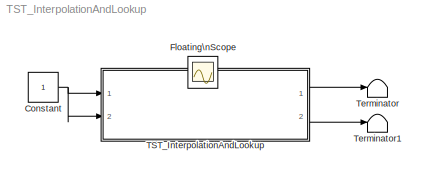
MODEL TST_InterpolationAndLookup
KIND model
BLOCK [Constant] Constant
  SID = 305
BLOCK [Scope] Floating\nScope
  Floating = off
  IOType = viewer
  NumInputPorts = 1
  Ports = []
  SID = 73
  ScopeSpecificationString = C++SS(StrPVP('Location','[1463, 653, 1787, 926]'),StrPVP('Open','off'),MxPVP('AxesTitles',54,'struct(''axes1'',''%<SignalLabel>'')'),MxPVP('ScopeGraphics',57,'struct(''FigureColor'',''[0.5 0.5 0.5]'',''AxesColor'',''[0 0 0]'',''AxesTickColor'',''[1 1 1]'',''LineColors'',''[1 1 0;1 0 1;0 1 1;1 0 0;0 1 0;0 0 1]'',''LineStyles'',''-|-|-|-|-|-'',''LineWidths'',''[0.5 0.5 0.5 0.5 0.5 0.5]'',''MarkerSty...<+178ch>
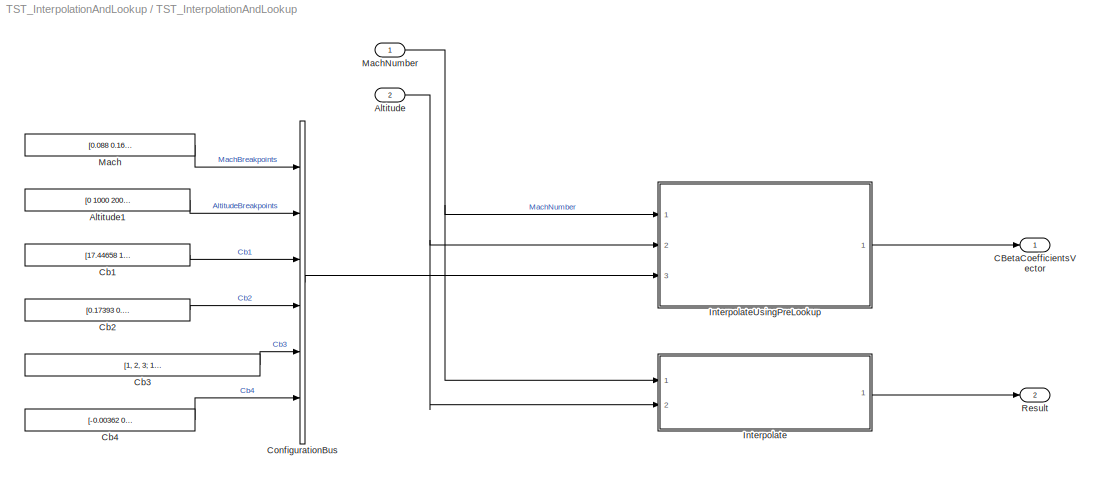
BLOCK [SubSystem] TST_InterpolationAndLookup
  Ports = [2, 2]
  RequestExecContextInheritance = off
  SID = 299
  TreatAsAtomicUnit = on
BLOCK [Inport] TST_InterpolationAndLookup/Altitude
  IconDisplay = Port number
  OutDataTypeStr = double
  Port = 2
  PortDimensions = 1
  SID = 329
BLOCK [Constant] TST_InterpolationAndLookup/Altitude1
  SID = 9
  Value = [0 1000 2000 5000]
BLOCK [Outport] TST_InterpolationAndLookup/CBetaCoefficientsVector
  IconDisplay = Port number
  OutDataTypeStr = double
  PortDimensions = 4
  SID = 304
BLOCK [Constant] TST_InterpolationAndLookup/Cb1
  SID = 19
  Value = [17.44658 17.35237 17.31781]
BLOCK [Constant] TST_InterpolationAndLookup/Cb2
  SID = 28
  Value = [0.17393 0.13673 0.14074]
BLOCK [Constant] TST_InterpolationAndLookup/Cb3
  SID = 29
  Value = [1, 2, 3; 10, 12, 14; 150, 300, 400; 1000, 2000, 3000]'
BLOCK [Constant] TST_InterpolationAndLookup/Cb4
  SID = 30
  Value = [-0.00362 0.05052 0.01760]
BLOCK [BusCreator] TST_InterpolationAndLookup/ConfigurationBus
  DisplayOption = bar
  InheritFromInputs = on
  Inputs = 6
  Ports = [6, 1]
  SID = 17
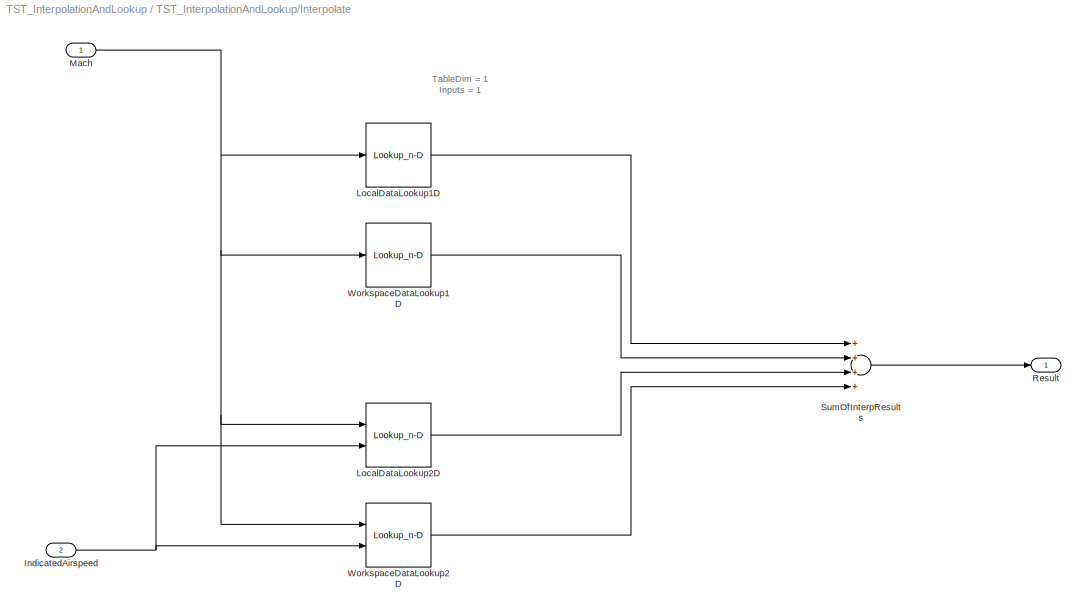
BLOCK [SubSystem] TST_InterpolationAndLookup/Interpolate
  Ports = [2, 1]
  RequestExecContextInheritance = off
  SID = 314
  TreatAsAtomicUnit = on
BLOCK [Inport] TST_InterpolationAndLookup/Interpolate/IndicatedAirspeed
  IconDisplay = Port number
  OutDataTypeStr = double
  Port = 2
  PortDimensions = 1
  SID = 330
BLOCK [Lookup_n-D] TST_InterpolationAndLookup/Interpolate/LocalDataLookup1D
  BreakpointsForDimension1 = [10 20 30]
  NumberOfTableDimensions = 1
  Ports = [1, 1]
  RndMeth = Simplest
  SID = 325
  Table = [1 2 3]
BLOCK [Lookup_n-D] TST_InterpolationAndLookup/Interpolate/LocalDataLookup2D
  BreakpointsForDimension1 = [1 2 3 4]
  BreakpointsForDimension2 = [10 20 30]
  Ports = [2, 1]
  RndMeth = Simplest
  SID = 309
  Table = [1, 2, 3; 10, 20, 30; 25, 26, 27; 100, 200, 300]
BLOCK [Inport] TST_InterpolationAndLookup/Interpolate/Mach
  IconDisplay = Port number
  SID = 324
BLOCK [Outport] TST_InterpolationAndLookup/Interpolate/Result
  IconDisplay = Port number
  SID = 335
BLOCK [Sum] TST_InterpolationAndLookup/Interpolate/SumOfInterpResults
  InputSameDT = off
  Inputs = ++++
  OutDataTypeStr = Inherit: Inherit via internal rule
  Ports = [4, 1]
  SID = 334
  SaturateOnIntegerOverflow = off
BLOCK [Lookup_n-D] TST_InterpolationAndLookup/Interpolate/WorkspaceDataLookup1D
  BreakpointsForDimension1 = TST_LookupData_BreakPointsX1D
  NumberOfTableDimensions = 1
  Ports = [1, 1]
  RndMeth = Simplest
  SID = 327
  Table = TST_LookupData_DataPoints1D
BLOCK [Lookup_n-D] TST_InterpolationAndLookup/Interpolate/WorkspaceDataLookup2D
  BreakpointsForDimension1 = TST_LookupData_BreakPointsY2D
  BreakpointsForDimension2 = TST_LookupData_BreakPointsX2D
  Ports = [2, 1]
  RndMeth = Simplest
  SID = 328
  Table = TST_LookupData_DataPoints2D
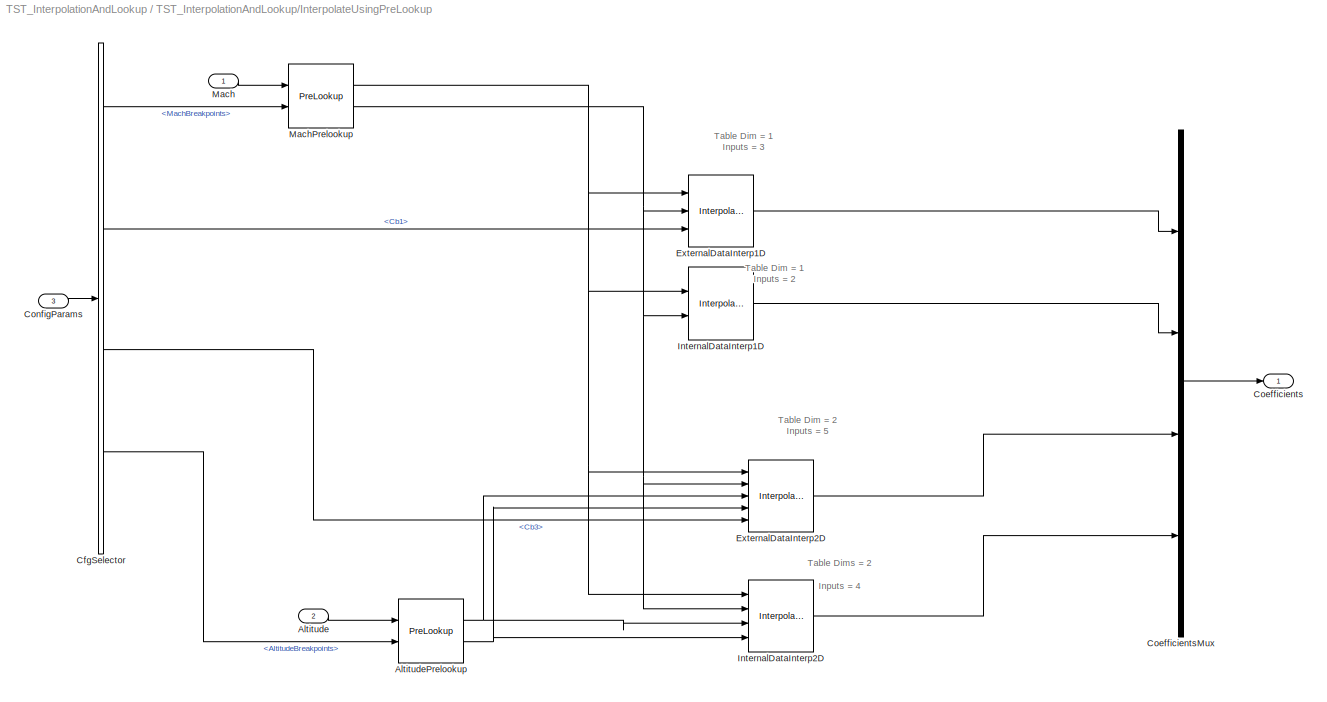
BLOCK [SubSystem] TST_InterpolationAndLookup/InterpolateUsingPreLookup
  Ports = [3, 1]
  RequestExecContextInheritance = off
  SID = 159
  TreatAsAtomicUnit = on
BLOCK [Inport] TST_InterpolationAndLookup/InterpolateUsingPreLookup/Altitude
  IconDisplay = Port number
  OutDataTypeStr = double
  Port = 2
  PortDimensions = 1
  SID = 331
BLOCK [PreLookup] TST_InterpolationAndLookup/InterpolateUsingPreLookup/AltitudePrelookup
  BreakpointsData = [10:10:110]
  BreakpointsDataSource = Input port
  ExtrapMethod = Linear
  InputPortMap = u0,p1
  Ports = [2, 2]
  SID = 332
BLOCK [BusSelector] TST_InterpolationAndLookup/InterpolateUsingPreLookup/CfgSelector
  OutputAsBus = off
  OutputSignals = MachBreakpoints,Cb1,Cb3,AltitudeBreakpoints
  Ports = [1, 4]
  SID = 18
BLOCK [Outport] TST_InterpolationAndLookup/InterpolateUsingPreLookup/Coefficients
  IconDisplay = Port number
  SID = 162
BLOCK [Mux] TST_InterpolationAndLookup/InterpolateUsingPreLookup/CoefficientsMux
  DisplayOption = bar
  Ports = [4, 1]
  SID = 46
BLOCK [Inport] TST_InterpolationAndLookup/InterpolateUsingPreLookup/ConfigParams
  IconDisplay = Port number
  Port = 3
  SID = 161
BLOCK [Interpolation_n-D] TST_InterpolationAndLookup/InterpolateUsingPreLookup/ExternalDataInterp1D
  ExtrapMethod = Clip
  InputPortMap = u0,u1,p2
  IntermediateResultsDataTypeStr = Inherit: Inherit via internal rule
  NumberOfTableDimensions = 1
  Ports = [3, 1]
  SID = 14
  TableSource = Input port
BLOCK [Interpolation_n-D] TST_InterpolationAndLookup/InterpolateUsingPreLookup/ExternalDataInterp2D
  ExtrapMethod = Clip
  InputPortMap = u0,u1,u2,u3,p2
  IntermediateResultsDataTypeStr = Inherit: Inherit via internal rule
  Ports = [5, 1]
  SID = 34
  TableSource = Input port
BLOCK [Interpolation_n-D] TST_InterpolationAndLookup/InterpolateUsingPreLookup/InternalDataInterp1D
  ExtrapMethod = Clip
  InputPortMap = u0,u1
  IntermediateResultsDataTypeStr = Inherit: Inherit via internal rule
  NumberOfTableDimensions = 1
  Ports = [2, 1]
  SID = 20
  Table = [0.17393 0.13673 0.14074]
BLOCK [Interpolation_n-D] TST_InterpolationAndLookup/InterpolateUsingPreLookup/InternalDataInterp2D
  ExtrapMethod = Clip
  InputPortMap = u0,u1,u2,u3
  IntermediateResultsDataTypeStr = Inherit: Inherit via internal rule
  Ports = [4, 1]
  SID = 333
  Table = [1, 2, 3; 10, 12, 14; 150, 300, 400; 1000, 2000, 3000]'
BLOCK [Inport] TST_InterpolationAndLookup/InterpolateUsingPreLookup/Mach
  IconDisplay = Port number
  SID = 160
BLOCK [PreLookup] TST_InterpolationAndLookup/InterpolateUsingPreLookup/MachPrelookup
  BreakpointsData = [10:10:110]
  BreakpointsDataSource = Input port
  ExtrapMethod = Linear
  InputPortMap = u0,p1
  Ports = [2, 2]
  SID = 15
BLOCK [Constant] TST_InterpolationAndLookup/Mach
  SID = 8
  Value = [0.088 0.166 0.241]
BLOCK [Inport] TST_InterpolationAndLookup/MachNumber
  IconDisplay = Port number
  OutDataTypeStr = double
  PortDimensions = 1
  SID = 303
BLOCK [Outport] TST_InterpolationAndLookup/Result
  IconDisplay = Port number
  OutDataTypeStr = double
  Port = 2
  PortDimensions = 1
  SID = 336
BLOCK [Terminator] Terminator
  SID = 306
BLOCK [Terminator] Terminator1
  SID = 337
ANNOTATION TST_InterpolationAndLookup/Interpolate: TableDim = 1\nInputs = 1
ANNOTATION TST_InterpolationAndLookup/InterpolateUsingPreLookup: Table Dim = 1\nInputs = 2
ANNOTATION TST_InterpolationAndLookup/InterpolateUsingPreLookup: Table Dim = 1\nInputs = 3
ANNOTATION TST_InterpolationAndLookup/InterpolateUsingPreLookup: Table Dim = 2\nInputs = 5
ANNOTATION TST_InterpolationAndLookup/InterpolateUsingPreLookup: Table Dims = 2\nInputs = 4
NET Constant:1 -> TST_InterpolationAndLookup:1, TST_InterpolationAndLookup:2
LINE TST_InterpolationAndLookup/Altitude1:1 -> TST_InterpolationAndLookup/ConfigurationBus:2
NET TST_InterpolationAndLookup/Altitude:1 -> TST_InterpolationAndLookup/Interpolate:2, TST_InterpolationAndLookup/InterpolateUsingPreLookup:2
LINE TST_InterpolationAndLookup/Cb1:1 -> TST_InterpolationAndLookup/ConfigurationBus:3
LINE TST_InterpolationAndLookup/Cb2:1 -> TST_InterpolationAndLookup/ConfigurationBus:4
LINE TST_InterpolationAndLookup/Cb3:1 -> TST_InterpolationAndLookup/ConfigurationBus:5
LINE TST_InterpolationAndLookup/Cb4:1 -> TST_InterpolationAndLookup/ConfigurationBus:6
LINE TST_InterpolationAndLookup/ConfigurationBus:1 -> TST_InterpolationAndLookup/InterpolateUsingPreLookup:3
NET TST_InterpolationAndLookup/Interpolate/IndicatedAirspeed:1 -> TST_InterpolationAndLookup/Interpolate/LocalDataLookup2D:2, TST_InterpolationAndLookup/Interpolate/WorkspaceDataLookup2D:2
LINE TST_InterpolationAndLookup/Interpolate/LocalDataLookup1D:1 -> TST_InterpolationAndLookup/Interpolate/SumOfInterpResults:1
LINE TST_InterpolationAndLookup/Interpolate/LocalDataLookup2D:1 -> TST_InterpolationAndLookup/Interpolate/SumOfInterpResults:3
NET TST_InterpolationAndLookup/Interpolate/Mach:1 -> TST_InterpolationAndLookup/Interpolate/LocalDataLookup1D:1, TST_InterpolationAndLookup/Interpolate/LocalDataLookup2D:1, TST_InterpolationAndLookup/Interpolate/WorkspaceDataLookup1D:1, TST_InterpolationAndLookup/Interpolate/WorkspaceDataLookup2D:1
LINE TST_InterpolationAndLookup/Interpolate/SumOfInterpResults:1 -> TST_InterpolationAndLookup/Interpolate/Result:1
LINE TST_InterpolationAndLookup/Interpolate/WorkspaceDataLookup1D:1 -> TST_InterpolationAndLookup/Interpolate/SumOfInterpResults:2
LINE TST_InterpolationAndLookup/Interpolate/WorkspaceDataLookup2D:1 -> TST_InterpolationAndLookup/Interpolate/SumOfInterpResults:4
LINE TST_InterpolationAndLookup/Interpolate:1 -> TST_InterpolationAndLookup/Result:1
LINE TST_InterpolationAndLookup/InterpolateUsingPreLookup/Altitude:1 -> TST_InterpolationAndLookup/InterpolateUsingPreLookup/AltitudePrelookup:1
NET TST_InterpolationAndLookup/InterpolateUsingPreLookup/AltitudePrelookup:1 -> TST_InterpolationAndLookup/InterpolateUsingPreLookup/ExternalDataInterp2D:3, TST_InterpolationAndLookup/InterpolateUsingPreLookup/InternalDataInterp2D:3
NET TST_InterpolationAndLookup/InterpolateUsingPreLookup/AltitudePrelookup:2 -> TST_InterpolationAndLookup/InterpolateUsingPreLookup/ExternalDataInterp2D:4, TST_InterpolationAndLookup/InterpolateUsingPreLookup/InternalDataInterp2D:4
LINE TST_InterpolationAndLookup/InterpolateUsingPreLookup/CfgSelector:1 -> TST_InterpolationAndLookup/InterpolateUsingPreLookup/MachPrelookup:2
LINE TST_InterpolationAndLookup/InterpolateUsingPreLookup/CfgSelector:2 -> TST_InterpolationAndLookup/InterpolateUsingPreLookup/ExternalDataInterp1D:3
LINE TST_InterpolationAndLookup/InterpolateUsingPreLookup/CfgSelector:3 -> TST_InterpolationAndLookup/InterpolateUsingPreLookup/ExternalDataInterp2D:5
LINE TST_InterpolationAndLookup/InterpolateUsingPreLookup/CfgSelector:4 -> TST_InterpolationAndLookup/InterpolateUsingPreLookup/AltitudePrelookup:2
LINE TST_InterpolationAndLookup/InterpolateUsingPreLookup/CoefficientsMux:1 -> TST_InterpolationAndLookup/InterpolateUsingPreLookup/Coefficients:1
LINE TST_InterpolationAndLookup/InterpolateUsingPreLookup/ConfigParams:1 -> TST_InterpolationAndLookup/InterpolateUsingPreLookup/CfgSelector:1
LINE TST_InterpolationAndLookup/InterpolateUsingPreLookup/ExternalDataInterp1D:1 -> TST_InterpolationAndLookup/InterpolateUsingPreLookup/CoefficientsMux:1
LINE TST_InterpolationAndLookup/InterpolateUsingPreLookup/ExternalDataInterp2D:1 -> TST_InterpolationAndLookup/InterpolateUsingPreLookup/CoefficientsMux:3
LINE TST_InterpolationAndLookup/InterpolateUsingPreLookup/InternalDataInterp1D:1 -> TST_InterpolationAndLookup/InterpolateUsingPreLookup/CoefficientsMux:2
LINE TST_InterpolationAndLookup/InterpolateUsingPreLookup/InternalDataInterp2D:1 -> TST_InterpolationAndLookup/InterpolateUsingPreLookup/CoefficientsMux:4
LINE TST_InterpolationAndLookup/InterpolateUsingPreLookup/Mach:1 -> TST_InterpolationAndLookup/InterpolateUsingPreLookup/MachPrelookup:1
NET TST_InterpolationAndLookup/InterpolateUsingPreLookup/MachPrelookup:1 -> TST_InterpolationAndLookup/InterpolateUsingPreLookup/ExternalDataInterp1D:1, TST_InterpolationAndLookup/InterpolateUsingPreLookup/ExternalDataInterp2D:1, TST_InterpolationAndLookup/InterpolateUsingPreLookup/InternalDataInterp1D:1, TST_InterpolationAndLookup/InterpolateUsingPreLookup/InternalDataInterp2D:1
NET TST_InterpolationAndLookup/InterpolateUsingPreLookup/MachPrelookup:2 -> TST_InterpolationAndLookup/InterpolateUsingPreLookup/ExternalDataInterp1D:2, TST_InterpolationAndLookup/InterpolateUsingPreLookup/ExternalDataInterp2D:2, TST_InterpolationAndLookup/InterpolateUsingPreLookup/InternalDataInterp1D:2, TST_InterpolationAndLookup/InterpolateUsingPreLookup/InternalDataInterp2D:2
LINE TST_InterpolationAndLookup/InterpolateUsingPreLookup:1 -> TST_InterpolationAndLookup/CBetaCoefficientsVector:1
LINE TST_InterpolationAndLookup/Mach:1 -> TST_InterpolationAndLookup/ConfigurationBus:1
NET TST_InterpolationAndLookup/MachNumber:1 -> TST_InterpolationAndLookup/Interpolate:1, TST_InterpolationAndLookup/InterpolateUsingPreLookup:1
LINE TST_InterpolationAndLookup:1 -> Terminator:1
LINE TST_InterpolationAndLookup:2 -> Terminator1:1
note: NET lines group one-source signal fan-out (src -> all destinations, sorted); 1:1 wires keep LINE
